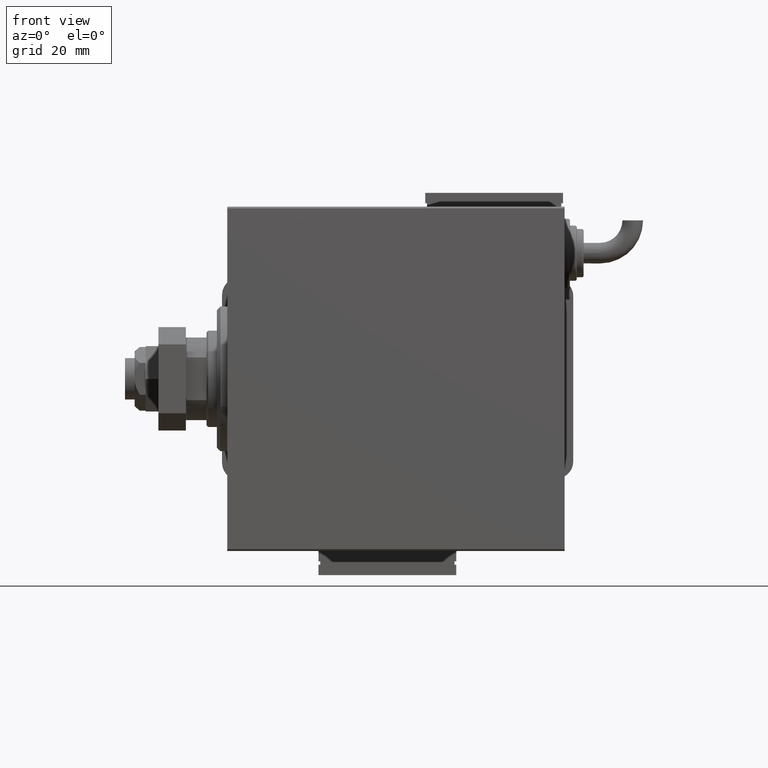
[diagram: clean part render]
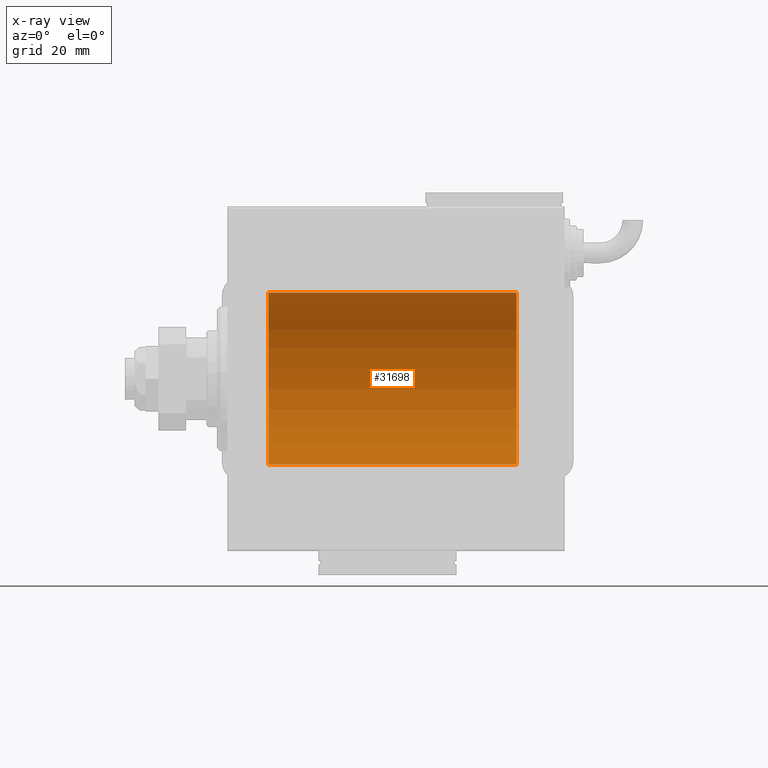
[diagram: x-ray — body ghosted, one internal face saturated and labeled with its STEP entity id]
A machine part, front view, then the same camera in x-ray: the body is ghosted and one INTERNAL B-rep face — a face not visible from any outside direction — is saturated and labeled: STEP entity #31698.
In plain terms, the highlighted cylindrical surface (partial cylindrical patch) has radius 25 mm, axis along (-1, -0, -0).
Its self-contained STEP definition (entity closure, byte-faithful):
#1195 = CARTESIAN_POINT ( 'NONE',  ( 11.99999999999999645, 3.061616997868382254E-15, -25.00000000000000000 ) ) ;
#3928 = VERTEX_POINT ( 'NONE', #35631 ) ;
#4131 = DIRECTION ( 'NONE',  ( -1.000000000000000000, 0.000000000000000000, 0.000000000000000000 ) ) ;
#4422 = CARTESIAN_POINT ( 'NONE',  ( 11.99999999999999645, 0.000000000000000000, 0.000000000000000000 ) ) ;
#4907 = CIRCLE ( 'NONE', #11659, 25.00000000000000000 ) ;
#5441 = CARTESIAN_POINT ( 'NONE',  ( 84.00000000000000000, 0.000000000000000000, 25.00000000000000000 ) ) ;
#7467 = AXIS2_PLACEMENT_3D ( 'NONE', #19692, #29342, #10945 ) ;
#8062 = EDGE_CURVE ( 'NONE', #3928, #39633, #37455, .T. ) ;
#10945 = DIRECTION ( 'NONE',  ( 0.000000000000000000, 0.000000000000000000, 1.000000000000000000 ) ) ;
#11659 = AXIS2_PLACEMENT_3D ( 'NONE', #4422, #4131, #31276 ) ;
#15760 = CYLINDRICAL_SURFACE ( 'NONE', #7467, 25.00000000000000000 ) ;
#16890 = ORIENTED_EDGE ( 'NONE', *, *, #51940, .T. ) ;
#19692 = CARTESIAN_POINT ( 'NONE',  ( 84.00000000000000000, 0.000000000000000000, 0.000000000000000000 ) ) ;
#22460 = ORIENTED_EDGE ( 'NONE', *, *, #36294, .F. ) ;
#22977 = CARTESIAN_POINT ( 'NONE',  ( 11.99999999999999645, 0.000000000000000000, 25.00000000000000000 ) ) ;
#23418 = CARTESIAN_POINT ( 'NONE',  ( 84.00000000000000000, 3.061616997868382254E-15, -25.00000000000000000 ) ) ;
#23820 = DIRECTION ( 'NONE',  ( -1.000000000000000000, -0.000000000000000000, -0.000000000000000000 ) ) ;
#25299 = VERTEX_POINT ( 'NONE', #22977 ) ;
#27998 = CARTESIAN_POINT ( 'NONE',  ( 84.00000000000000000, 3.061616997868382254E-15, -25.00000000000000000 ) ) ;
#28355 = LINE ( 'NONE', #5441, #55187 ) ;
#29342 = DIRECTION ( 'NONE',  ( -1.000000000000000000, -0.000000000000000000, -0.000000000000000000 ) ) ;
#30258 = FACE_OUTER_BOUND ( 'NONE', #37575, .T. ) ;
#31276 = DIRECTION ( 'NONE',  ( 0.000000000000000000, 0.000000000000000000, 1.000000000000000000 ) ) ;
#31698 = ADVANCED_FACE ( 'NONE', ( #30258 ), #15760, .F. ) ;
#33300 = ORIENTED_EDGE ( 'NONE', *, *, #57654, .T. ) ;
#35631 = CARTESIAN_POINT ( 'NONE',  ( 84.00000000000000000, 0.000000000000000000, 25.00000000000000000 ) ) ;
#36250 = VECTOR ( 'NONE', #46386, 1000.000000000000000 ) ;
#36294 = EDGE_CURVE ( 'NONE', #39633, #40088, #50028, .T. ) ;
#37455 = CIRCLE ( 'NONE', #45192, 25.00000000000000000 ) ;
#37575 = EDGE_LOOP ( 'NONE', ( #22460, #43875, #33300, #16890 ) ) ;
#39297 = CARTESIAN_POINT ( 'NONE',  ( 84.00000000000000000, 0.000000000000000000, 0.000000000000000000 ) ) ;
#39599 = DIRECTION ( 'NONE',  ( 0.000000000000000000, 0.000000000000000000, 1.000000000000000000 ) ) ;
#39633 = VERTEX_POINT ( 'NONE', #23418 ) ;
#40088 = VERTEX_POINT ( 'NONE', #1195 ) ;
#43875 = ORIENTED_EDGE ( 'NONE', *, *, #8062, .F. ) ;
#45192 = AXIS2_PLACEMENT_3D ( 'NONE', #39297, #47750, #39599 ) ;
#46386 = DIRECTION ( 'NONE',  ( -1.000000000000000000, -0.000000000000000000, -0.000000000000000000 ) ) ;
#47750 = DIRECTION ( 'NONE',  ( -1.000000000000000000, 0.000000000000000000, 0.000000000000000000 ) ) ;
#50028 = LINE ( 'NONE', #27998, #36250 ) ;
#51940 = EDGE_CURVE ( 'NONE', #25299, #40088, #4907, .T. ) ;
#55187 = VECTOR ( 'NONE', #23820, 1000.000000000000000 ) ;
#57654 = EDGE_CURVE ( 'NONE', #3928, #25299, #28355, .T. ) ;